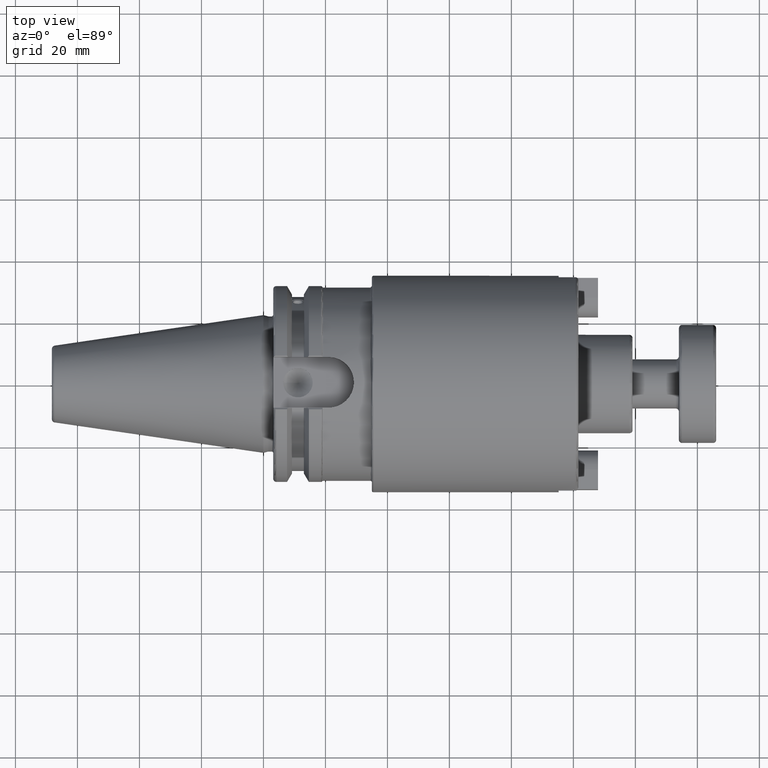
[diagram: clean part render]
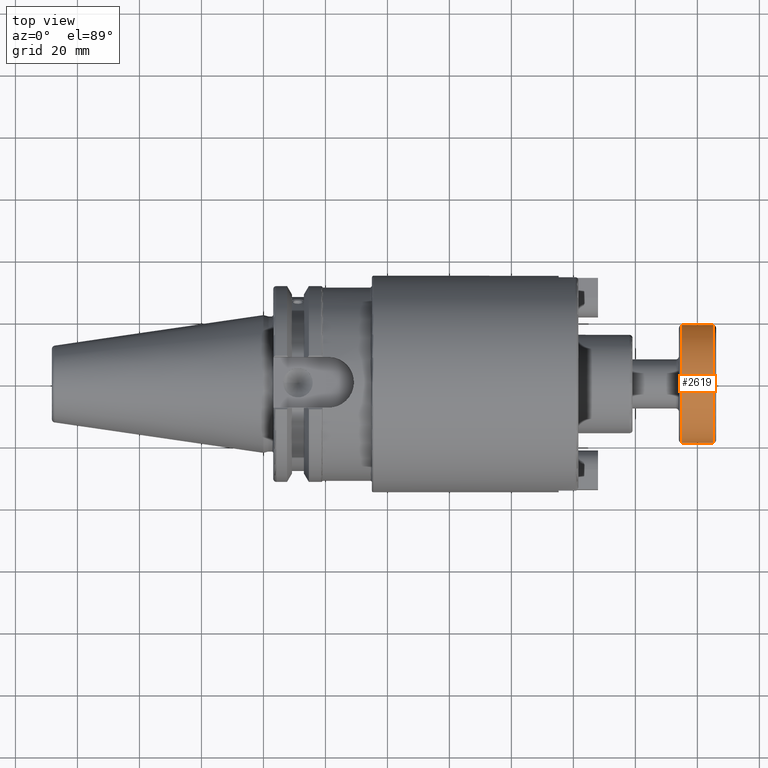
[diagram: same view with one face highlighted and labeled with its STEP entity id]
A machine part, top view. The second image highlights one B-rep face of the part: STEP entity #2619.
In plain terms, the highlighted cylindrical surface (bore or boss wall) has radius 19.05 mm, axis along (-1, -0, -0).
Its self-contained STEP definition (entity closure, byte-faithful):
#155=CYLINDRICAL_SURFACE('',#3024,19.05);
#329=CIRCLE('',#3022,19.05);
#330=CIRCLE('',#3023,19.05);
#331=CIRCLE('',#3025,19.05);
#332=CIRCLE('',#3026,19.05);
#481=FACE_OUTER_BOUND('',#654,.T.);
#654=EDGE_LOOP('',(#2386,#2387,#2388,#2389,#2390,#2391));
#818=LINE('',#5023,#979);
#979=VECTOR('',#3801,19.05);
#1265=VERTEX_POINT('',#5016);
#1266=VERTEX_POINT('',#5018);
#1267=VERTEX_POINT('',#5022);
#1268=VERTEX_POINT('',#5024);
#1641=EDGE_CURVE('',#1265,#1266,#329,.T.);
#1642=EDGE_CURVE('',#1266,#1265,#330,.T.);
#1643=EDGE_CURVE('',#1266,#1267,#818,.T.);
#1644=EDGE_CURVE('',#1268,#1267,#331,.T.);
#1645=EDGE_CURVE('',#1267,#1268,#332,.T.);
#2386=ORIENTED_EDGE('',*,*,#1642,.F.);
#2387=ORIENTED_EDGE('',*,*,#1643,.T.);
#2388=ORIENTED_EDGE('',*,*,#1644,.F.);
#2389=ORIENTED_EDGE('',*,*,#1645,.F.);
#2390=ORIENTED_EDGE('',*,*,#1643,.F.);
#2391=ORIENTED_EDGE('',*,*,#1641,.F.);
#2619=ADVANCED_FACE('',(#481),#155,.T.);
#3022=AXIS2_PLACEMENT_3D('',#5019,#3795,#3796);
#3023=AXIS2_PLACEMENT_3D('',#5020,#3797,#3798);
#3024=AXIS2_PLACEMENT_3D('',#5021,#3799,#3800);
#3025=AXIS2_PLACEMENT_3D('',#5025,#3802,#3803);
#3026=AXIS2_PLACEMENT_3D('',#5026,#3804,#3805);
#3795=DIRECTION('center_axis',(1.,0.,0.));
#3796=DIRECTION('ref_axis',(0.,-1.,1.83697019872103E-16));
#3797=DIRECTION('center_axis',(1.,0.,0.));
#3798=DIRECTION('ref_axis',(0.,-1.,1.83697019872103E-16));
#3799=DIRECTION('center_axis',(1.,0.,0.));
#3800=DIRECTION('ref_axis',(0.,1.,0.));
#3801=DIRECTION('',(-1.,0.,0.));
#3802=DIRECTION('center_axis',(-1.,0.,0.));
#3803=DIRECTION('ref_axis',(0.,-1.,1.83697019872103E-16));
#3804=DIRECTION('center_axis',(-1.,0.,0.));
#3805=DIRECTION('ref_axis',(0.,-1.,1.83697019872103E-16));
#5016=CARTESIAN_POINT('',(11.,-2.33295215237571E-15,19.05));
#5018=CARTESIAN_POINT('',(11.,-19.05,-2.33295215237571E-15));
#5019=CARTESIAN_POINT('Origin',(11.,0.,0.));
#5020=CARTESIAN_POINT('Origin',(11.,0.,0.));
#5021=CARTESIAN_POINT('Origin',(6.,0.,0.));
#5022=CARTESIAN_POINT('',(1.,-19.05,-2.33295215237571E-15));
#5023=CARTESIAN_POINT('',(6.,-19.05,-2.33295215237571E-15));
#5024=CARTESIAN_POINT('',(1.,-2.33295215237571E-15,19.05));
#5025=CARTESIAN_POINT('Origin',(1.,0.,0.));
#5026=CARTESIAN_POINT('Origin',(1.,0.,0.));